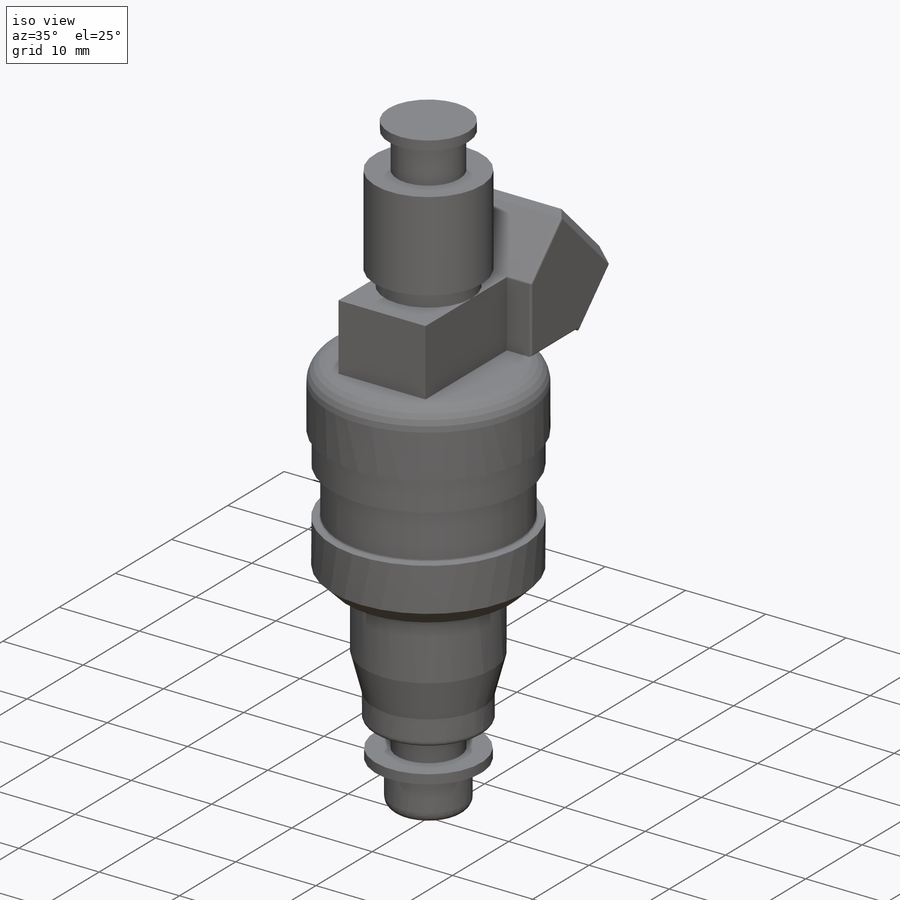
[diagram: iso view]
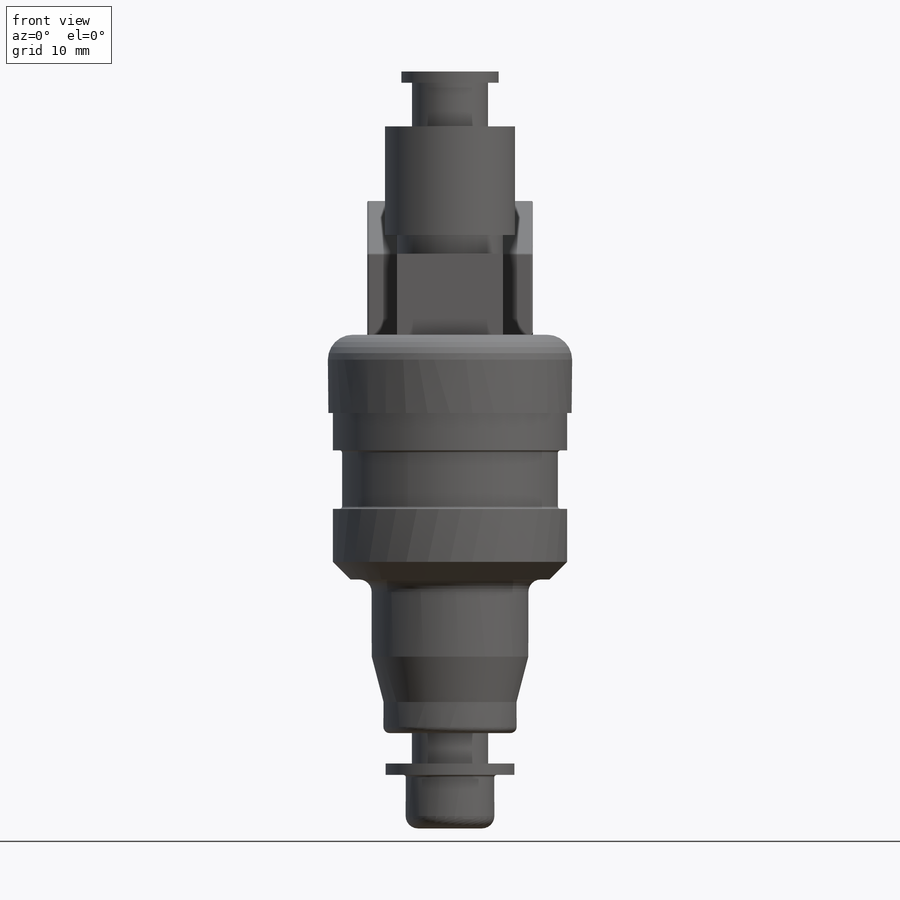
[diagram: front view]
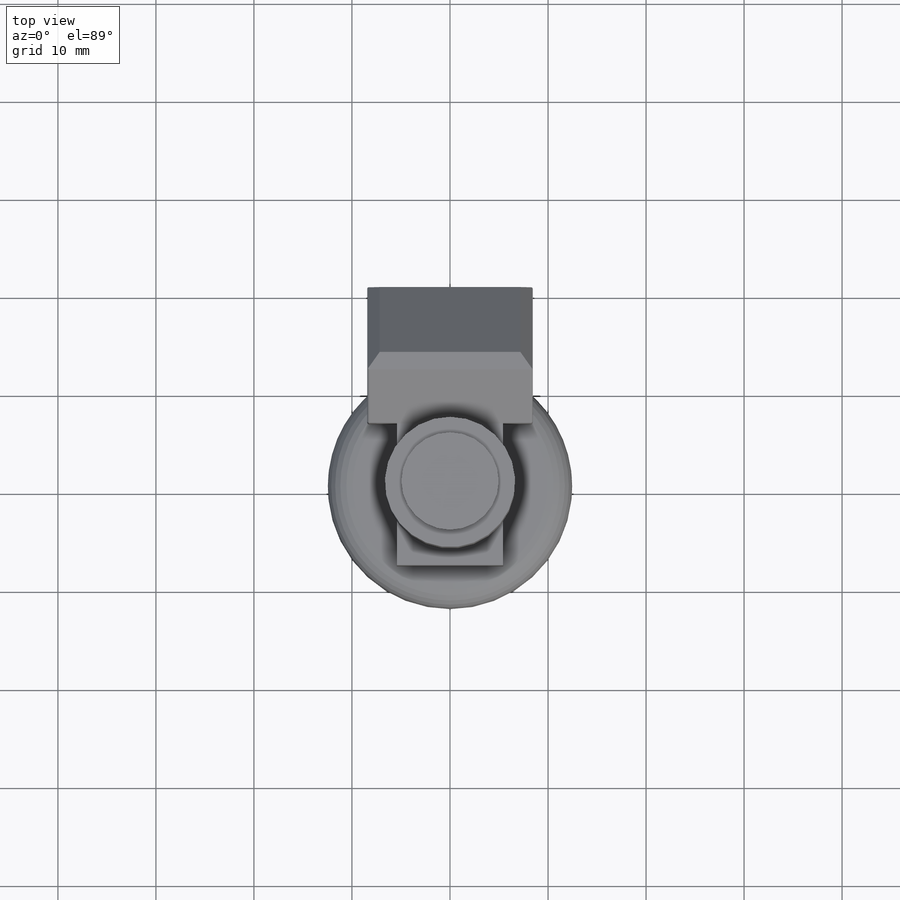
[diagram: top view]
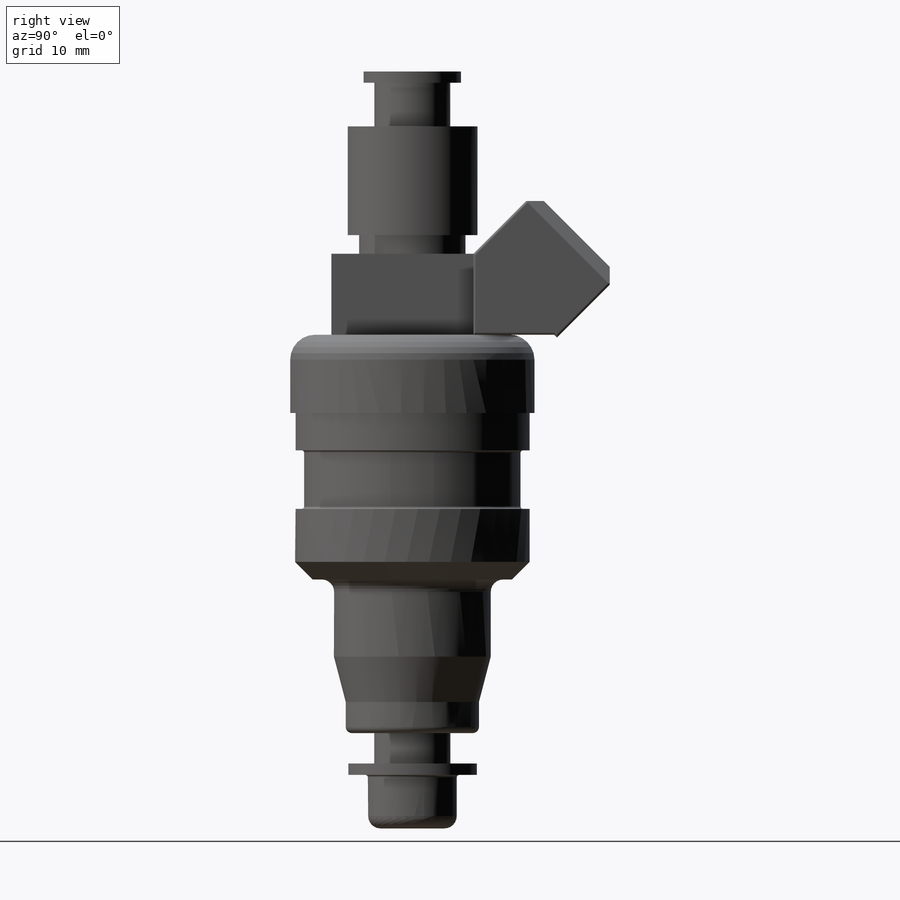
[diagram: right view]
SOLIDWORKS PART (.sldprt)
format: sldprt  version: not decoded by parser v0  size: 341,504 bytes
history: native  units: mm
features: sketch x4, extrude x3, material x1, revolve x1, plane x1, chamfer x1, fillet x1 (+16 scaffold rows collapsed)
feature tree (28):
  scaffold x16  (default folders/planes/origin — collapsed)
  material  "Material <not specified>"
  sketch  "Sketch1"  dims[c1.D7=1.27mm c1.D8=0.254mm c1.D16=0.254mm c1.D17=1.27mm c1.D18=0.635mm c1.D30=2.54mm c1.D1=~1.80848mm c1.D2=5.461mm c2.D1=4.5339mm c2.D3=6.5786mm c2.D4=1.1684mm c2.D5=3.8862mm c2.D6=3.0988mm c2.D9=6.7945mm c2.D10=3.175mm c2.D11=8.001mm c2.D12=9.779mm c2.D13=11.9634mm c2.D14=5.4102mm c2.D15=11.0363mm c3.D12=~4.768328mm c4.D12=~188.86349deg c5.D12=5.4102mm c6.D12=135.0deg c6.D19=5.969mm c6.D20=77.216mm c6.D21=4.9657mm c6.D22=1.143mm c6.D23=4.445mm c6.D24=3.8735mm c6.D25=6.6421mm c6.D26=11.0998mm c6.D27=10.16mm c6.D28=3.81mm c6.D29=5.4229mm c6.D31=12.4587mm c6.D32=2.54mm c6.D33=25.4mm]
  revolve  "Revolve1"  Angle=360deg
  sketch  "Sketch2"  dims[D1=8.255mm]
  extrude  "Extrude1"  Depth=8.255mm
  plane  "Plane1"
  sketch  "Sketch3"  dims[D1=16.891mm D2=12.065mm]
  extrude  "Extrude2"  Depth=8.89mm
  sketch  "Sketch4"
  extrude  "Extrude3"  [1 undecoded]
  chamfer  "Chamfer1"  Distance=1.27mm Angle=45deg
  fillet  "Fillet5"  Radius=0.254mm
decode coverage: 8 of 10 modeling features carry decoded parameters
note: ~ marks probable driven/reference dimensions
note: 1 parameter value undecoded
note: suppression state not decoded; provenance and decode notes live in map.json
